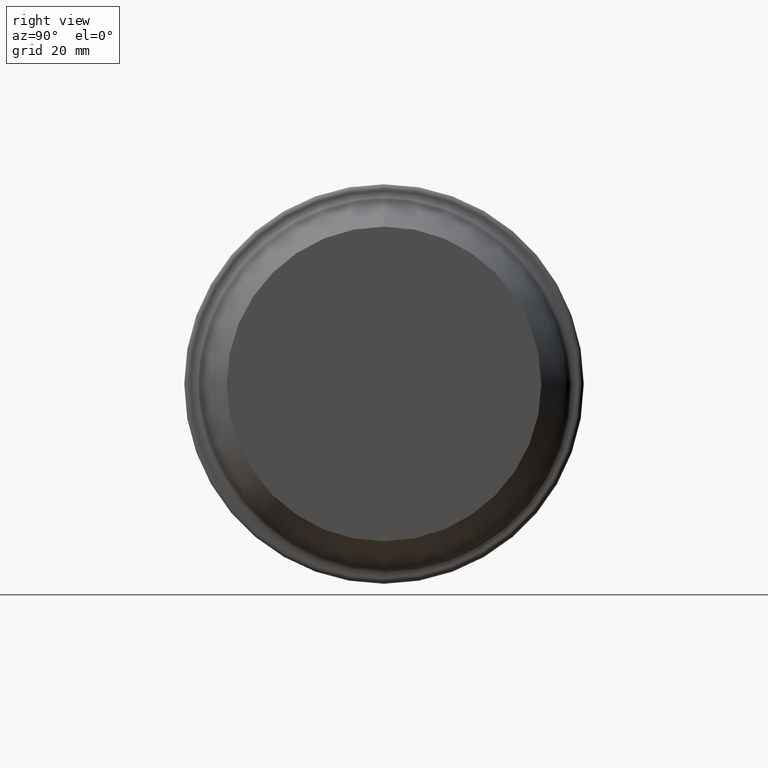
[diagram: clean part render]
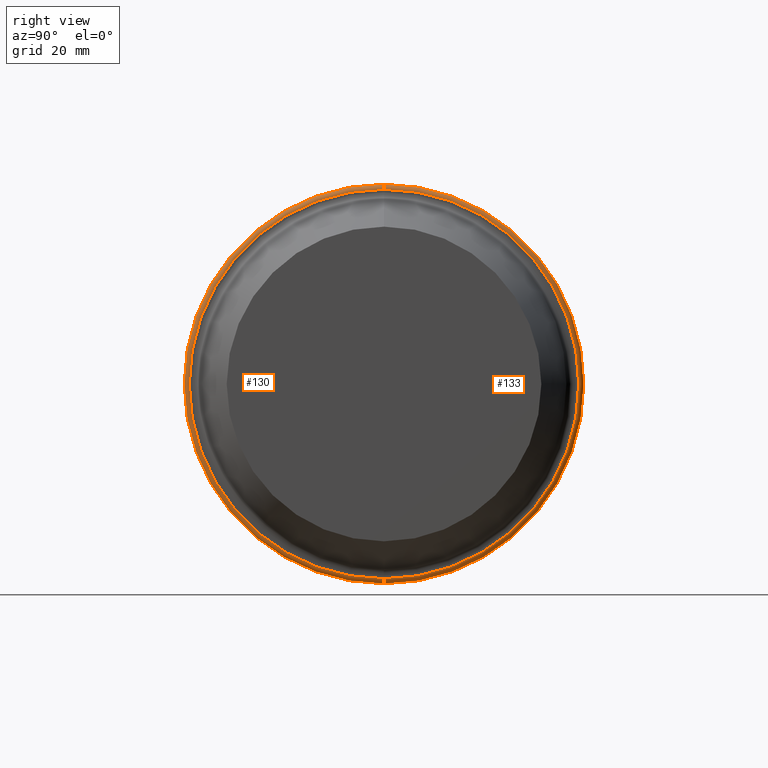
[diagram: same view with one multi-face feature highlighted, each face labeled with its STEP entity id]
A machine part, right view. The highlighted faces form ONE feature: a constant-radius fillet chain: 2 tangent blend faces with common blend radius 1 mm. The faces share edges in the B-rep.
Their STEP definitions:
[1] entity #130 (Torus):
#3 = EDGE_CURVE ( 'NONE', #401, #497, #310, .T. ) ;
#14 = DIRECTION ( 'NONE',  ( 0.000000000000000000, 1.000000000000000000, 1.224646799147353947E-16 ) ) ;
#23 = DIRECTION ( 'NONE',  ( 0.000000000000000000, 0.000000000000000000, -1.000000000000000000 ) ) ;
#30 = FACE_OUTER_BOUND ( 'NONE', #87, .T. ) ;
#33 = ORIENTED_EDGE ( 'NONE', *, *, #476, .F. ) ;
#36 = CARTESIAN_POINT ( 'NONE',  ( 28.99999997311141797, 4.897668707065322260E-15, -39.99249996386929951 ) ) ;
#37 = CIRCLE ( 'NONE', #88, 39.99249996386929951 ) ;
#87 = EDGE_LOOP ( 'NONE', ( #33, #145, #308, #142 ) ) ;
#88 = AXIS2_PLACEMENT_3D ( 'NONE', #454, #157, #262 ) ;
#114 = DIRECTION ( 'NONE',  ( 0.000000000000000000, -1.000000000000000000, 0.000000000000000000 ) ) ;
#123 = AXIS2_PLACEMENT_3D ( 'NONE', #272, #452, #234 ) ;
#130 = ADVANCED_FACE ( 'NONE', ( #30 ), #285, .T. ) ;
#142 = ORIENTED_EDGE ( 'NONE', *, *, #249, .F. ) ;
#145 = ORIENTED_EDGE ( 'NONE', *, *, #3, .T. ) ;
#151 = CARTESIAN_POINT ( 'NONE',  ( 29.99999997209141611, 0.000000000000000000, 38.99249996488934045 ) ) ;
#156 = DIRECTION ( 'NONE',  ( 0.000000000000000000, -1.224646799147358384E-16, 1.000000000000000000 ) ) ;
#157 = DIRECTION ( 'NONE',  ( -1.000000000000000000, 0.000000000000000000, 0.000000000000000000 ) ) ;
#187 = CARTESIAN_POINT ( 'NONE',  ( 28.99999997311141797, 0.000000000000000000, 39.99249996386929951 ) ) ;
#234 = DIRECTION ( 'NONE',  ( 0.000000000000000000, 0.000000000000000000, 1.000000000000000000 ) ) ;
#249 = EDGE_CURVE ( 'NONE', #290, #504, #37, .T. ) ;
#250 = AXIS2_PLACEMENT_3D ( 'NONE', #280, #276, #372 ) ;
#256 = AXIS2_PLACEMENT_3D ( 'NONE', #415, #114, #23 ) ;
#262 = DIRECTION ( 'NONE',  ( 0.000000000000000000, 0.000000000000000000, 1.000000000000000000 ) ) ;
#266 = CARTESIAN_POINT ( 'NONE',  ( 29.99999997209141611, 4.836436367170416693E-15, -38.99249996488934045 ) ) ;
#272 = CARTESIAN_POINT ( 'NONE',  ( 28.99999997311141797, 0.000000000000000000, 0.000000000000000000 ) ) ;
#276 = DIRECTION ( 'NONE',  ( -1.000000000000000000, 0.000000000000000000, 0.000000000000000000 ) ) ;
#280 = CARTESIAN_POINT ( 'NONE',  ( 29.99999997209141611, 0.000000000000000000, 0.000000000000000000 ) ) ;
#285 = TOROIDAL_SURFACE ( 'NONE', #123, 38.99249996488934045, 0.9999999989799999156 ) ;
#290 = VERTEX_POINT ( 'NONE', #36 ) ;
#294 = EDGE_CURVE ( 'NONE', #497, #504, #507, .T. ) ;
#308 = ORIENTED_EDGE ( 'NONE', *, *, #294, .T. ) ;
#310 = CIRCLE ( 'NONE', #250, 38.99249996488934045 ) ;
#344 = AXIS2_PLACEMENT_3D ( 'NONE', #394, #14, #156 ) ;
#372 = DIRECTION ( 'NONE',  ( 0.000000000000000000, 0.000000000000000000, 1.000000000000000000 ) ) ;
#377 = CIRCLE ( 'NONE', #344, 0.9999999989799973621 ) ;
#394 = CARTESIAN_POINT ( 'NONE',  ( 28.99999997311141797, 4.775204027275495348E-15, -38.99249996488934045 ) ) ;
#401 = VERTEX_POINT ( 'NONE', #266 ) ;
#415 = CARTESIAN_POINT ( 'NONE',  ( 28.99999997311141797, 0.000000000000000000, 38.99249996488934045 ) ) ;
#452 = DIRECTION ( 'NONE',  ( -1.000000000000000000, 0.000000000000000000, 0.000000000000000000 ) ) ;
#454 = CARTESIAN_POINT ( 'NONE',  ( 28.99999997311141797, 0.000000000000000000, 0.000000000000000000 ) ) ;
#476 = EDGE_CURVE ( 'NONE', #401, #290, #377, .T. ) ;
#497 = VERTEX_POINT ( 'NONE', #151 ) ;
#504 = VERTEX_POINT ( 'NONE', #187 ) ;
#507 = CIRCLE ( 'NONE', #256, 0.9999999989799973621 ) ;
[2] entity #133 (Torus):
#14 = DIRECTION ( 'NONE',  ( 0.000000000000000000, 1.000000000000000000, 1.224646799147353947E-16 ) ) ;
#16 = ORIENTED_EDGE ( 'NONE', *, *, #294, .F. ) ;
#18 = DIRECTION ( 'NONE',  ( -1.000000000000000000, 0.000000000000000000, 0.000000000000000000 ) ) ;
#23 = DIRECTION ( 'NONE',  ( 0.000000000000000000, 0.000000000000000000, -1.000000000000000000 ) ) ;
#26 = AXIS2_PLACEMENT_3D ( 'NONE', #293, #508, #378 ) ;
#36 = CARTESIAN_POINT ( 'NONE',  ( 28.99999997311141797, 4.897668707065322260E-15, -39.99249996386929951 ) ) ;
#49 = TOROIDAL_SURFACE ( 'NONE', #26, 38.99249996488934045, 0.9999999989799999156 ) ;
#55 = DIRECTION ( 'NONE',  ( -1.000000000000000000, 0.000000000000000000, 0.000000000000000000 ) ) ;
#57 = CIRCLE ( 'NONE', #369, 39.99249996386929951 ) ;
#61 = CARTESIAN_POINT ( 'NONE',  ( 28.99999997311141797, 0.000000000000000000, 0.000000000000000000 ) ) ;
#113 = CARTESIAN_POINT ( 'NONE',  ( 29.99999997209141611, 0.000000000000000000, 0.000000000000000000 ) ) ;
#114 = DIRECTION ( 'NONE',  ( 0.000000000000000000, -1.000000000000000000, 0.000000000000000000 ) ) ;
#129 = CIRCLE ( 'NONE', #468, 38.99249996488934045 ) ;
#133 = ADVANCED_FACE ( 'NONE', ( #531 ), #49, .T. ) ;
#151 = CARTESIAN_POINT ( 'NONE',  ( 29.99999997209141611, 0.000000000000000000, 38.99249996488934045 ) ) ;
#156 = DIRECTION ( 'NONE',  ( 0.000000000000000000, -1.224646799147358384E-16, 1.000000000000000000 ) ) ;
#187 = CARTESIAN_POINT ( 'NONE',  ( 28.99999997311141797, 0.000000000000000000, 39.99249996386929951 ) ) ;
#211 = EDGE_CURVE ( 'NONE', #504, #290, #57, .T. ) ;
#254 = ORIENTED_EDGE ( 'NONE', *, *, #476, .T. ) ;
#256 = AXIS2_PLACEMENT_3D ( 'NONE', #415, #114, #23 ) ;
#266 = CARTESIAN_POINT ( 'NONE',  ( 29.99999997209141611, 4.836436367170416693E-15, -38.99249996488934045 ) ) ;
#290 = VERTEX_POINT ( 'NONE', #36 ) ;
#293 = CARTESIAN_POINT ( 'NONE',  ( 28.99999997311141797, 0.000000000000000000, 0.000000000000000000 ) ) ;
#294 = EDGE_CURVE ( 'NONE', #497, #504, #507, .T. ) ;
#319 = ORIENTED_EDGE ( 'NONE', *, *, #211, .F. ) ;
#344 = AXIS2_PLACEMENT_3D ( 'NONE', #394, #14, #156 ) ;
#369 = AXIS2_PLACEMENT_3D ( 'NONE', #61, #18, #510 ) ;
#377 = CIRCLE ( 'NONE', #344, 0.9999999989799973621 ) ;
#378 = DIRECTION ( 'NONE',  ( 0.000000000000000000, 0.000000000000000000, 1.000000000000000000 ) ) ;
#389 = ORIENTED_EDGE ( 'NONE', *, *, #503, .T. ) ;
#394 = CARTESIAN_POINT ( 'NONE',  ( 28.99999997311141797, 4.775204027275495348E-15, -38.99249996488934045 ) ) ;
#401 = VERTEX_POINT ( 'NONE', #266 ) ;
#415 = CARTESIAN_POINT ( 'NONE',  ( 28.99999997311141797, 0.000000000000000000, 38.99249996488934045 ) ) ;
#430 = EDGE_LOOP ( 'NONE', ( #389, #254, #319, #16 ) ) ;
#468 = AXIS2_PLACEMENT_3D ( 'NONE', #113, #55, #477 ) ;
#476 = EDGE_CURVE ( 'NONE', #401, #290, #377, .T. ) ;
#477 = DIRECTION ( 'NONE',  ( 0.000000000000000000, 0.000000000000000000, 1.000000000000000000 ) ) ;
#497 = VERTEX_POINT ( 'NONE', #151 ) ;
#503 = EDGE_CURVE ( 'NONE', #497, #401, #129, .T. ) ;
#504 = VERTEX_POINT ( 'NONE', #187 ) ;
#507 = CIRCLE ( 'NONE', #256, 0.9999999989799973621 ) ;
#508 = DIRECTION ( 'NONE',  ( -1.000000000000000000, 0.000000000000000000, 0.000000000000000000 ) ) ;
#510 = DIRECTION ( 'NONE',  ( 0.000000000000000000, 0.000000000000000000, 1.000000000000000000 ) ) ;
#531 = FACE_OUTER_BOUND ( 'NONE', #430, .T. ) ;